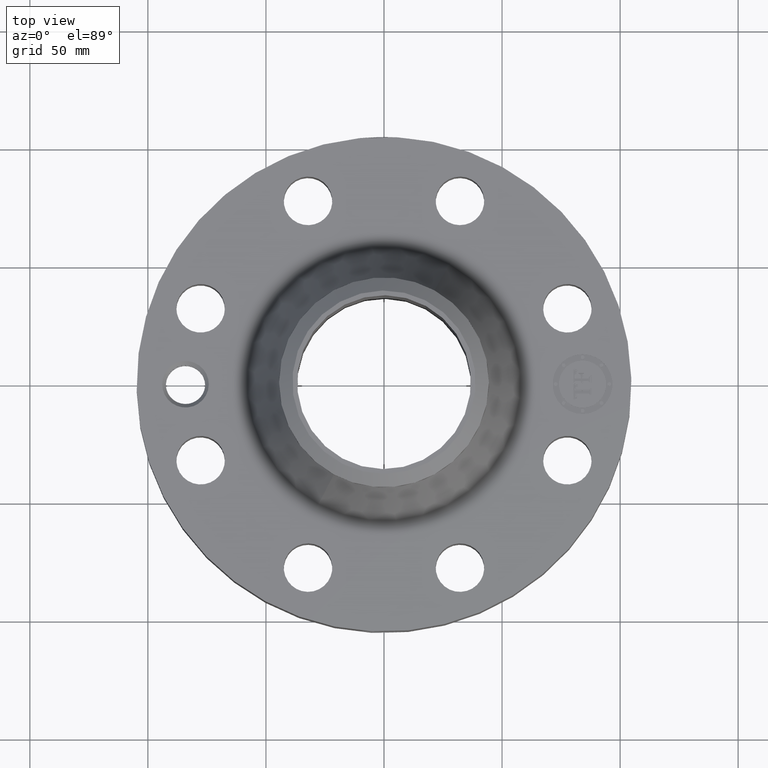
[diagram: clean part render]
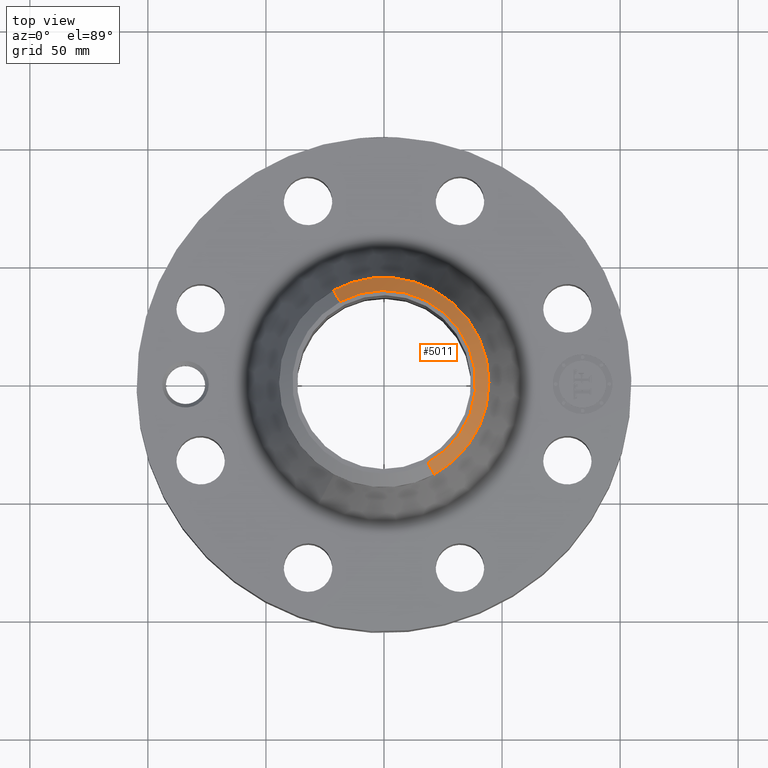
[diagram: same view with one face highlighted and labeled with its STEP entity id]
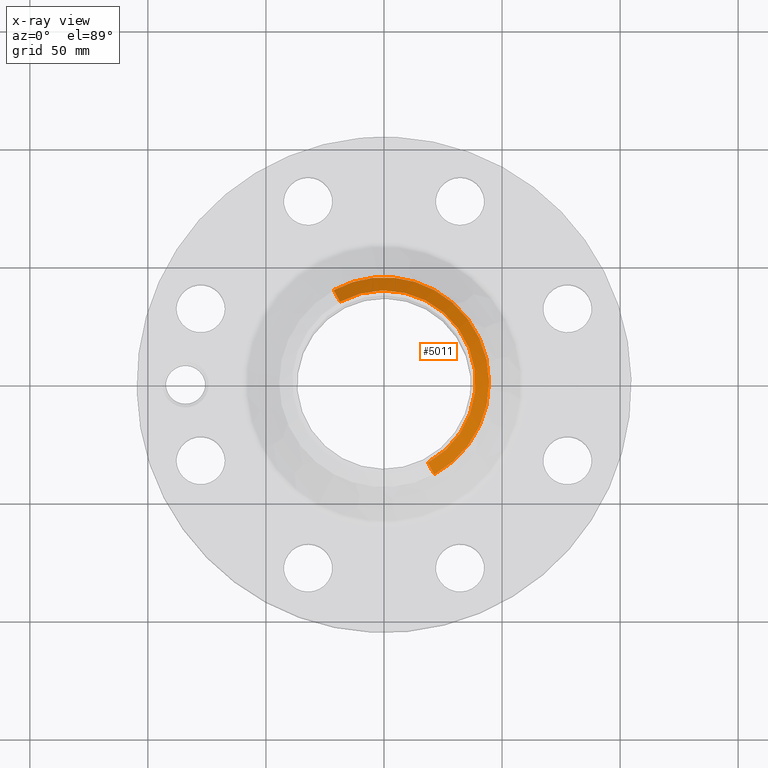
[diagram: x-ray of the same camera — body ghosted, the highlighted face saturated]
A machine part, top view. The second image highlights one B-rep face of the part: STEP entity #5011.
The next image is the same camera in x-ray: the body ghosted, the highlighted face saturated — about 0% of this face is hidden behind the body in this view.
In plain terms, the highlighted conical surface has half-angle 52.5 deg.
Its self-contained STEP definition (entity closure, byte-faithful):
#3734=AXIS2_PLACEMENT_3D('Circle Axis2P3D',#3732,#3733,$) ;
#3761=AXIS2_PLACEMENT_3D('Circle Axis2P3D',#3759,#3760,$) ;
#4587=AXIS2_PLACEMENT_3D('Circle Axis2P3D',#4585,#4586,$) ;
#4992=AXIS2_PLACEMENT_3D('Cone Axis2P3D',#4989,#4990,#4991) ;
#3729=CARTESIAN_POINT('Vertex',(0.838994692561,1.53576948331,3.39022135149)) ;
#3732=CARTESIAN_POINT('Axis2P3D Location',(0.,0.,3.39022135149)) ;
#3736=CARTESIAN_POINT('Vertex',(0.838994692561,-1.53576948331,3.39022135149)) ;
#3756=CARTESIAN_POINT('Vertex',(-0.838994692561,1.53576948331,3.39022135149)) ;
#3759=CARTESIAN_POINT('Axis2P3D Location',(0.,0.,3.39022135149)) ;
#4585=CARTESIAN_POINT('Axis2P3D Location',(0.,0.,3.56000000001)) ;
#4589=CARTESIAN_POINT('Vertex',(0.732917073389,-1.34159570387,3.56000000001)) ;
#4591=CARTESIAN_POINT('Vertex',(-0.732917073389,1.34159570387,3.56000000001)) ;
#4989=CARTESIAN_POINT('Axis2P3D Location',(0.,0.,3.56000000001)) ;
#4994=CARTESIAN_POINT('Line Origine',(-0.785955882975,1.43868259359,3.47511067575)) ;
#4999=CARTESIAN_POINT('Line Origine',(0.785955882975,-1.43868259359,3.47511067575)) ;
#3733=DIRECTION('Axis2P3D Direction',(0.,0.,-0.0393700787402)) ;
#3760=DIRECTION('Axis2P3D Direction',(0.,0.,-0.0393700787402)) ;
#4586=DIRECTION('Axis2P3D Direction',(0.,0.,-0.0393700787402)) ;
#4990=DIRECTION('Axis2P3D Direction',(-0.,-0.,-0.0393700787402)) ;
#4991=DIRECTION('Axis2P3D XDirection',(0.0188750212049,-0.0345504945626,0.)) ;
#4995=DIRECTION('Vector Direction',(-0.014974561121,0.02741075027,-0.023966985394)) ;
#5000=DIRECTION('Vector Direction',(0.014974561121,-0.02741075027,-0.023966985394)) ;
#4996=VECTOR('Line Direction',#4995,0.0393700787402) ;
#5001=VECTOR('Line Direction',#5000,0.0393700787402) ;
#5005=ORIENTED_EDGE('',*,*,#4998,.F.) ;
#5006=ORIENTED_EDGE('',*,*,#4593,.F.) ;
#5007=ORIENTED_EDGE('',*,*,#5003,.T.) ;
#5008=ORIENTED_EDGE('',*,*,#3738,.T.) ;
#5009=ORIENTED_EDGE('',*,*,#3763,.F.) ;
#5011=ADVANCED_FACE('PartBody',(#5010),#4993,.T.) ;
#3735=CIRCLE('generated circle',#3734,1.75000000001) ;
#3762=CIRCLE('generated circle',#3761,1.75000000001) ;
#4588=CIRCLE('generated circle',#4587,1.52874015749) ;
#4993=CONICAL_SURFACE('Cone',#4992,1.52874015749,0.916297857297) ;
#3738=EDGE_CURVE('',#3737,#3730,#3735,.F.) ;
#3763=EDGE_CURVE('',#3757,#3730,#3762,.T.) ;
#4593=EDGE_CURVE('',#4590,#4592,#4588,.F.) ;
#4998=EDGE_CURVE('',#4592,#3757,#4997,.T.) ;
#5003=EDGE_CURVE('',#4590,#3737,#5002,.T.) ;
#5004=EDGE_LOOP('',(#5005,#5006,#5007,#5008,#5009)) ;
#5010=FACE_OUTER_BOUND('',#5004,.T.) ;
#4997=LINE('Line',#4994,#4996) ;
#5002=LINE('Line',#4999,#5001) ;
#3730=VERTEX_POINT('',#3729) ;
#3737=VERTEX_POINT('',#3736) ;
#3757=VERTEX_POINT('',#3756) ;
#4590=VERTEX_POINT('',#4589) ;
#4592=VERTEX_POINT('',#4591) ;